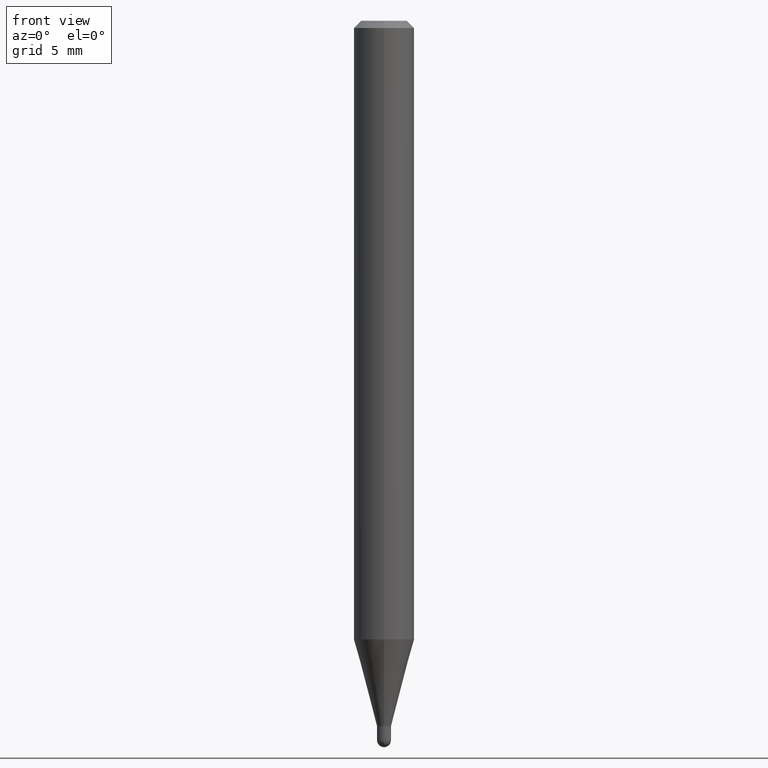
[diagram: clean part render]
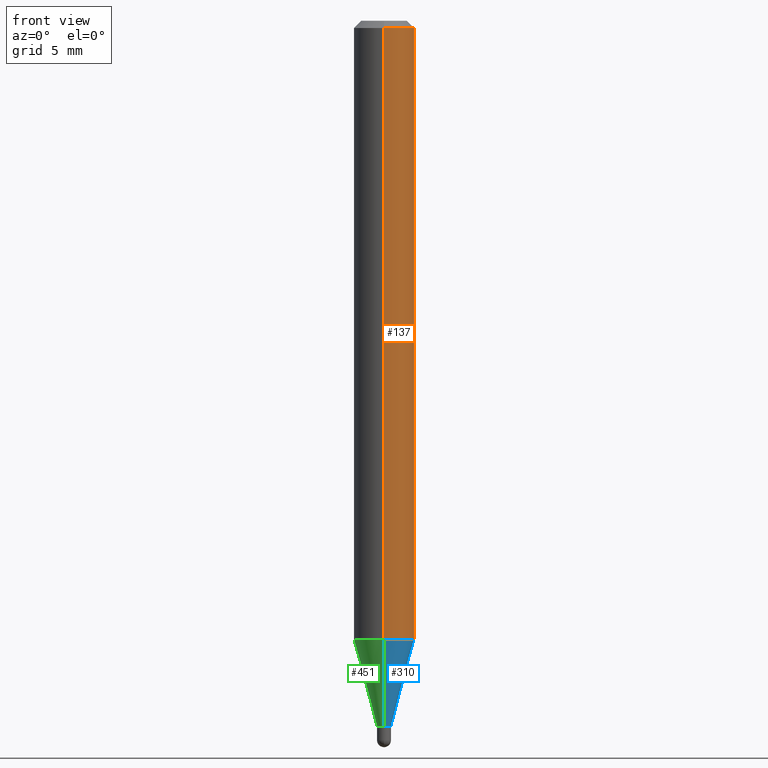
[diagram: same view with three faces highlighted in distinct colors, each labeled with its STEP entity id]
A machine part, front view with three faces highlighted in distinct colors.
Their STEP definitions:

[orange] entity #137 — the highlighted cylindrical surface (edge-blend (fillet) strip) has radius 1.5875 mm, axis along (-0, 0, 1).
#34 = DIRECTION ( 'NONE',  ( -2.445463896887184035E-29, 3.491488369237233587E-15, 1.000000000000000000 ) ) ;
#38 = VECTOR ( 'NONE', #425, 39.37007874015748143 ) ;
#51 = DIRECTION ( 'NONE',  ( -2.445463896887184035E-29, 3.491488369237233587E-15, 1.000000000000000000 ) ) ;
#64 = CARTESIAN_POINT ( 'NONE',  ( 4.440892098500937762E-16, 0.06249999999999554523, -1.277361561236700860 ) ) ;
#72 = CARTESIAN_POINT ( 'NONE',  ( 0.000000000000000000, 0.000000000000000000, 0.000000000000000000 ) ) ;
#83 = EDGE_CURVE ( 'NONE', #173, #279, #257, .T. ) ;
#93 = ORIENTED_EDGE ( 'NONE', *, *, #326, .T. ) ;
#109 = CYLINDRICAL_SURFACE ( 'NONE', #245, 0.06250000000000000000 ) ;
#129 = ORIENTED_EDGE ( 'NONE', *, *, #443, .F. ) ;
#137 = ADVANCED_FACE ( 'NONE', ( #455 ), #109, .T. ) ;
#156 = AXIS2_PLACEMENT_3D ( 'NONE', #441, #51, #444 ) ;
#165 = VECTOR ( 'NONE', #286, 39.37007874015748143 ) ;
#169 = CIRCLE ( 'NONE', #156, 0.06250000000000000000 ) ;
#170 = CARTESIAN_POINT ( 'NONE',  ( -4.364351673553605094E-16, -0.06250000000000446865, -1.277361561236700194 ) ) ;
#173 = VERTEX_POINT ( 'NONE', #170 ) ;
#218 = EDGE_LOOP ( 'NONE', ( #93, #351, #129, #381 ) ) ;
#226 = DIRECTION ( 'NONE',  ( -6.982962677686265922E-15, -1.000000000000000000, 3.491488369237233587E-15 ) ) ;
#245 = AXIS2_PLACEMENT_3D ( 'NONE', #72, #34, #226 ) ;
#257 = LINE ( 'NONE', #377, #165 ) ;
#266 = CARTESIAN_POINT ( 'NONE',  ( 4.440892098500625669E-16, 0.06250000000000000000, -2.182180230773270992E-16 ) ) ;
#272 = VERTEX_POINT ( 'NONE', #391 ) ;
#279 = VERTEX_POINT ( 'NONE', #490 ) ;
#286 = DIRECTION ( 'NONE',  ( -2.445463896887184035E-29, 3.491488369237233587E-15, 1.000000000000000000 ) ) ;
#291 = EDGE_CURVE ( 'NONE', #412, #272, #461, .T. ) ;
#326 = EDGE_CURVE ( 'NONE', #173, #412, #169, .T. ) ;
#341 = CARTESIAN_POINT ( 'NONE',  ( 3.668195845330792640E-31, -5.237232553855873110E-17, -0.01500000000000006710 ) ) ;
#351 = ORIENTED_EDGE ( 'NONE', *, *, #291, .T. ) ;
#364 = AXIS2_PLACEMENT_3D ( 'NONE', #341, #421, #380 ) ;
#377 = CARTESIAN_POINT ( 'NONE',  ( -4.364351673553916201E-16, -0.06250000000000000000, 2.182180230773270992E-16 ) ) ;
#380 = DIRECTION ( 'NONE',  ( -6.982962677686265922E-15, -1.000000000000000000, 3.483106191921935554E-15 ) ) ;
#381 = ORIENTED_EDGE ( 'NONE', *, *, #83, .F. ) ;
#391 = CARTESIAN_POINT ( 'NONE',  ( 4.440892098500940720E-16, 0.06249999999999995143, -0.01500000000000028394 ) ) ;
#401 = CIRCLE ( 'NONE', #364, 0.06250000000000000000 ) ;
#412 = VERTEX_POINT ( 'NONE', #64 ) ;
#421 = DIRECTION ( 'NONE',  ( -2.445463896887184035E-29, 3.491488369237233587E-15, 1.000000000000000000 ) ) ;
#425 = DIRECTION ( 'NONE',  ( -2.445463896887184035E-29, 3.491488369237233587E-15, 1.000000000000000000 ) ) ;
#441 = CARTESIAN_POINT ( 'NONE',  ( 3.123741581275799299E-29, -4.459893034368653541E-15, -1.277361561236700638 ) ) ;
#443 = EDGE_CURVE ( 'NONE', #279, #272, #401, .T. ) ;
#444 = DIRECTION ( 'NONE',  ( -6.982962677686265922E-15, -1.000000000000000000, 4.370956789862821150E-15 ) ) ;
#455 = FACE_OUTER_BOUND ( 'NONE', #218, .T. ) ;
#461 = LINE ( 'NONE', #266, #38 ) ;
#490 = CARTESIAN_POINT ( 'NONE',  ( -4.364351673553912750E-16, -0.06250000000000005551, -0.01499999999999984852 ) ) ;

[blue] entity #310 — the highlighted conical surface has half-angle 15 deg.
#6 = EDGE_CURVE ( 'NONE', #166, #412, #307, .T. ) ;
#8 = DIRECTION ( 'NONE',  ( -6.982962677686266711E-15, -1.000000000000000000, 0.000000000000000000 ) ) ;
#42 = EDGE_LOOP ( 'NONE', ( #214, #248, #406, #213 ) ) ;
#51 = DIRECTION ( 'NONE',  ( -2.445463896887184035E-29, 3.491488369237233587E-15, 1.000000000000000000 ) ) ;
#64 = CARTESIAN_POINT ( 'NONE',  ( 4.440892098500937762E-16, 0.06249999999999554523, -1.277361561236700860 ) ) ;
#96 = AXIS2_PLACEMENT_3D ( 'NONE', #216, #363, #8 ) ;
#135 = CARTESIAN_POINT ( 'NONE',  ( 3.561818165816184393E-29, -5.085352809794031551E-15, -1.456500000000000128 ) ) ;
#156 = AXIS2_PLACEMENT_3D ( 'NONE', #441, #51, #444 ) ;
#162 = CARTESIAN_POINT ( 'NONE',  ( 1.030286966852515470E-16, 0.01449999999999511402, -1.456500000000000128 ) ) ;
#166 = VERTEX_POINT ( 'NONE', #311 ) ;
#169 = CIRCLE ( 'NONE', #156, 0.06250000000000000000 ) ;
#170 = CARTESIAN_POINT ( 'NONE',  ( -4.364351673553605094E-16, -0.06250000000000446865, -1.277361561236700194 ) ) ;
#173 = VERTEX_POINT ( 'NONE', #170 ) ;
#201 = VERTEX_POINT ( 'NONE', #222 ) ;
#213 = ORIENTED_EDGE ( 'NONE', *, *, #410, .F. ) ;
#214 = ORIENTED_EDGE ( 'NONE', *, *, #262, .T. ) ;
#216 = CARTESIAN_POINT ( 'NONE',  ( 3.561818165816184393E-29, -5.085352809794031551E-15, -1.456500000000000128 ) ) ;
#222 = CARTESIAN_POINT ( 'NONE',  ( -1.012529588264166263E-16, -0.01450000000000528470, -1.456500000000000128 ) ) ;
#223 = CARTESIAN_POINT ( 'NONE',  ( -1.012529588264166263E-16, -0.01450000000000528470, -1.456500000000000128 ) ) ;
#236 = FACE_OUTER_BOUND ( 'NONE', #42, .T. ) ;
#242 = DIRECTION ( 'NONE',  ( 1.839019923739649619E-15, 0.2588190451025318972, 0.9659258262890650926 ) ) ;
#248 = ORIENTED_EDGE ( 'NONE', *, *, #6, .T. ) ;
#250 = VECTOR ( 'NONE', #378, 39.37007874015748854 ) ;
#251 = VECTOR ( 'NONE', #242, 39.37007874015748854 ) ;
#262 = EDGE_CURVE ( 'NONE', #201, #166, #403, .T. ) ;
#292 = DIRECTION ( 'NONE',  ( -2.445463896887184035E-29, 3.491488369237233587E-15, 1.000000000000000000 ) ) ;
#307 = LINE ( 'NONE', #162, #251 ) ;
#310 = ADVANCED_FACE ( 'NONE', ( #236 ), #398, .T. ) ;
#311 = CARTESIAN_POINT ( 'NONE',  ( 2.735589532676728342E-16, 0.01449999999999511402, -1.456500000000000128 ) ) ;
#326 = EDGE_CURVE ( 'NONE', #173, #412, #169, .T. ) ;
#363 = DIRECTION ( 'NONE',  ( -2.445463896887184035E-29, 3.491488369237233587E-15, 1.000000000000000000 ) ) ;
#378 = DIRECTION ( 'NONE',  ( -1.807323732225379049E-15, -0.2588190451025252359, 0.9659258262890670910 ) ) ;
#398 = CONICAL_SURFACE ( 'NONE', #96, 0.01450000000000019849, 0.2617993877991575125 ) ;
#403 = CIRCLE ( 'NONE', #445, 0.01450000000000019849 ) ;
#406 = ORIENTED_EDGE ( 'NONE', *, *, #326, .F. ) ;
#410 = EDGE_CURVE ( 'NONE', #201, #173, #450, .T. ) ;
#412 = VERTEX_POINT ( 'NONE', #64 ) ;
#441 = CARTESIAN_POINT ( 'NONE',  ( 3.123741581275799299E-29, -4.459893034368653541E-15, -1.277361561236700638 ) ) ;
#444 = DIRECTION ( 'NONE',  ( -6.982962677686265922E-15, -1.000000000000000000, 4.370956789862821150E-15 ) ) ;
#445 = AXIS2_PLACEMENT_3D ( 'NONE', #135, #292, #448 ) ;
#448 = DIRECTION ( 'NONE',  ( -6.982962677686266711E-15, -1.000000000000000000, 0.000000000000000000 ) ) ;
#450 = LINE ( 'NONE', #223, #250 ) ;

[green] entity #451 — the highlighted conical surface has half-angle 15 deg.
#6 = EDGE_CURVE ( 'NONE', #166, #412, #307, .T. ) ;
#30 = CARTESIAN_POINT ( 'NONE',  ( 3.561818165816184393E-29, -5.085352809794031551E-15, -1.456500000000000128 ) ) ;
#39 = DIRECTION ( 'NONE',  ( -6.982962677686266711E-15, -1.000000000000000000, 0.000000000000000000 ) ) ;
#64 = CARTESIAN_POINT ( 'NONE',  ( 4.440892098500937762E-16, 0.06249999999999554523, -1.277361561236700860 ) ) ;
#105 = AXIS2_PLACEMENT_3D ( 'NONE', #30, #254, #227 ) ;
#118 = ORIENTED_EDGE ( 'NONE', *, *, #6, .F. ) ;
#162 = CARTESIAN_POINT ( 'NONE',  ( 1.030286966852515470E-16, 0.01449999999999511402, -1.456500000000000128 ) ) ;
#166 = VERTEX_POINT ( 'NONE', #311 ) ;
#170 = CARTESIAN_POINT ( 'NONE',  ( -4.364351673553605094E-16, -0.06250000000000446865, -1.277361561236700194 ) ) ;
#173 = VERTEX_POINT ( 'NONE', #170 ) ;
#180 = DIRECTION ( 'NONE',  ( -2.445463896887184035E-29, 3.491488369237233587E-15, 1.000000000000000000 ) ) ;
#201 = VERTEX_POINT ( 'NONE', #222 ) ;
#220 = FACE_OUTER_BOUND ( 'NONE', #263, .T. ) ;
#222 = CARTESIAN_POINT ( 'NONE',  ( -1.012529588264166263E-16, -0.01450000000000528470, -1.456500000000000128 ) ) ;
#223 = CARTESIAN_POINT ( 'NONE',  ( -1.012529588264166263E-16, -0.01450000000000528470, -1.456500000000000128 ) ) ;
#227 = DIRECTION ( 'NONE',  ( -6.982962677686266711E-15, -1.000000000000000000, 0.000000000000000000 ) ) ;
#234 = EDGE_CURVE ( 'NONE', #166, #201, #463, .T. ) ;
#242 = DIRECTION ( 'NONE',  ( 1.839019923739649619E-15, 0.2588190451025318972, 0.9659258262890650926 ) ) ;
#250 = VECTOR ( 'NONE', #378, 39.37007874015748854 ) ;
#251 = VECTOR ( 'NONE', #242, 39.37007874015748854 ) ;
#254 = DIRECTION ( 'NONE',  ( -2.445463896887184035E-29, 3.491488369237233587E-15, 1.000000000000000000 ) ) ;
#255 = AXIS2_PLACEMENT_3D ( 'NONE', #268, #180, #39 ) ;
#263 = EDGE_LOOP ( 'NONE', ( #118, #478, #337, #509 ) ) ;
#268 = CARTESIAN_POINT ( 'NONE',  ( 3.561818165816184393E-29, -5.085352809794031551E-15, -1.456500000000000128 ) ) ;
#273 = AXIS2_PLACEMENT_3D ( 'NONE', #504, #489, #422 ) ;
#307 = LINE ( 'NONE', #162, #251 ) ;
#311 = CARTESIAN_POINT ( 'NONE',  ( 2.735589532676728342E-16, 0.01449999999999511402, -1.456500000000000128 ) ) ;
#337 = ORIENTED_EDGE ( 'NONE', *, *, #410, .T. ) ;
#378 = DIRECTION ( 'NONE',  ( -1.807323732225379049E-15, -0.2588190451025252359, 0.9659258262890670910 ) ) ;
#387 = EDGE_CURVE ( 'NONE', #412, #173, #440, .T. ) ;
#410 = EDGE_CURVE ( 'NONE', #201, #173, #450, .T. ) ;
#412 = VERTEX_POINT ( 'NONE', #64 ) ;
#422 = DIRECTION ( 'NONE',  ( -6.982962677686265922E-15, -1.000000000000000000, 4.370956789862821150E-15 ) ) ;
#440 = CIRCLE ( 'NONE', #273, 0.06250000000000000000 ) ;
#450 = LINE ( 'NONE', #223, #250 ) ;
#451 = ADVANCED_FACE ( 'NONE', ( #220 ), #495, .T. ) ;
#463 = CIRCLE ( 'NONE', #255, 0.01450000000000019849 ) ;
#478 = ORIENTED_EDGE ( 'NONE', *, *, #234, .T. ) ;
#489 = DIRECTION ( 'NONE',  ( -2.445463896887184035E-29, 3.491488369237233587E-15, 1.000000000000000000 ) ) ;
#495 = CONICAL_SURFACE ( 'NONE', #105, 0.01450000000000019849, 0.2617993877991575125 ) ;
#504 = CARTESIAN_POINT ( 'NONE',  ( 3.123741581275799299E-29, -4.459893034368653541E-15, -1.277361561236700638 ) ) ;
#509 = ORIENTED_EDGE ( 'NONE', *, *, #387, .F. ) ;